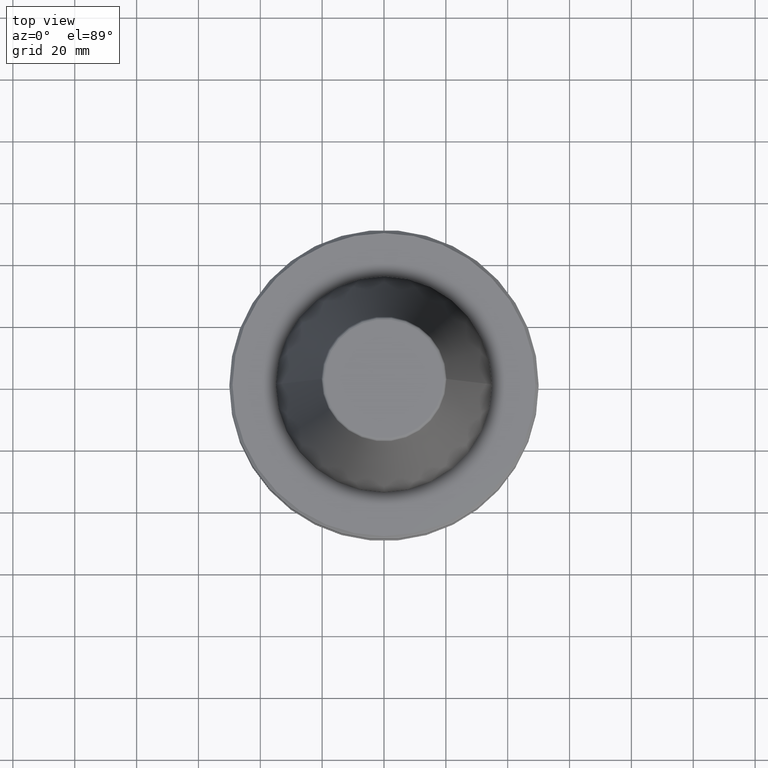
[diagram: clean part render]
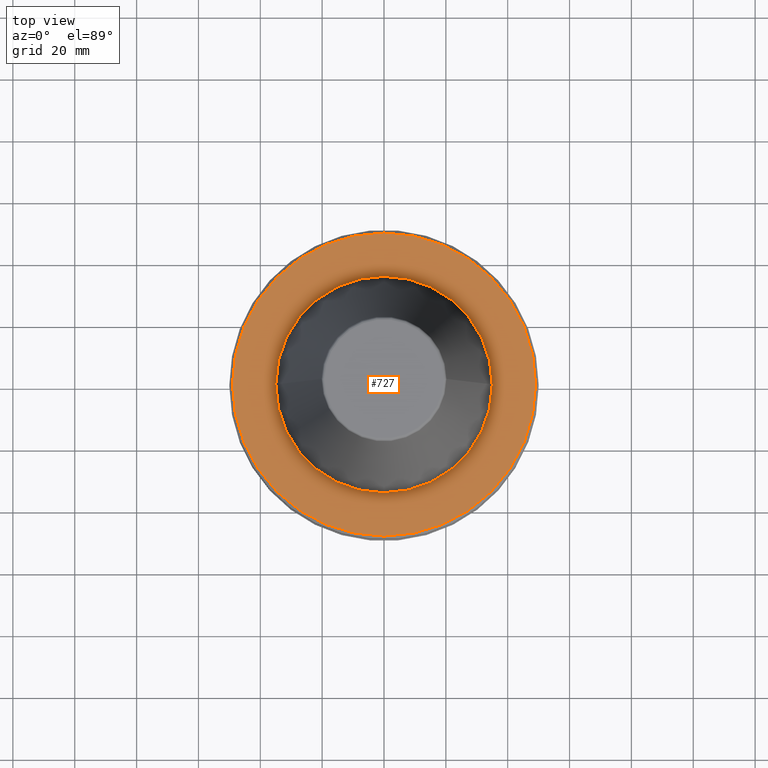
[diagram: same view with one face highlighted and labeled with its STEP entity id]
A machine part, top view. The second image highlights one B-rep face of the part: STEP entity #727.
In plain terms, the highlighted planar face has unit normal (0, 0, -1).
Its self-contained STEP definition (entity closure, byte-faithful):
#10 = VERTEX_POINT ( 'NONE', #314 ) ;
#24 = FACE_OUTER_BOUND ( 'NONE', #279, .T. ) ;
#58 = EDGE_CURVE ( 'NONE', #10, #773, #427, .T. ) ;
#59 = DIRECTION ( 'NONE',  ( -1.000000000000000000, 0.0000000000000000000, -0.0000000000000000000 ) ) ;
#69 = AXIS2_PLACEMENT_3D ( 'NONE', #600, #762, #121 ) ;
#91 = EDGE_CURVE ( 'NONE', #773, #10, #985, .T. ) ;
#99 = AXIS2_PLACEMENT_3D ( 'NONE', #861, #777, #162 ) ;
#103 = CARTESIAN_POINT ( 'NONE',  ( -35.00000000000000000, 4.286263797015737300E-015, -2.999999999999995600 ) ) ;
#121 = DIRECTION ( 'NONE',  ( 1.000000000000000000, 0.0000000000000000000, 0.0000000000000000000 ) ) ;
#135 = VERTEX_POINT ( 'NONE', #579 ) ;
#148 = CARTESIAN_POINT ( 'NONE',  ( -49.00000000000000000, 0.0000000000000000000, -2.999999999999988900 ) ) ;
#162 = DIRECTION ( 'NONE',  ( 1.000000000000000000, 0.0000000000000000000, 0.0000000000000000000 ) ) ;
#222 = AXIS2_PLACEMENT_3D ( 'NONE', #362, #358, #373 ) ;
#227 = DIRECTION ( 'NONE',  ( 1.000000000000000000, 0.0000000000000000000, 0.0000000000000000000 ) ) ;
#270 = EDGE_CURVE ( 'NONE', #135, #867, #308, .T. ) ;
#279 = EDGE_LOOP ( 'NONE', ( #564, #635 ) ) ;
#308 = CIRCLE ( 'NONE', #99, 35.00000000000000000 ) ;
#314 = CARTESIAN_POINT ( 'NONE',  ( 49.00000000000000000, 6.062001655779398500E-015, -2.999999999999988900 ) ) ;
#333 = AXIS2_PLACEMENT_3D ( 'NONE', #900, #667, #227 ) ;
#358 = DIRECTION ( 'NONE',  ( -0.0000000000000000000, -0.0000000000000000000, 1.000000000000000000 ) ) ;
#362 = CARTESIAN_POINT ( 'NONE',  ( 0.0000000000000000000, 0.0000000000000000000, -2.999999999999988900 ) ) ;
#373 = DIRECTION ( 'NONE',  ( 1.000000000000000000, 0.0000000000000000000, 0.0000000000000000000 ) ) ;
#380 = FACE_BOUND ( 'NONE', #798, .T. ) ;
#427 = CIRCLE ( 'NONE', #69, 49.00000000000000000 ) ;
#484 = CIRCLE ( 'NONE', #333, 35.00000000000000000 ) ;
#522 = EDGE_CURVE ( 'NONE', #867, #135, #484, .T. ) ;
#564 = ORIENTED_EDGE ( 'NONE', *, *, #91, .T. ) ;
#579 = CARTESIAN_POINT ( 'NONE',  ( 35.00000000000000000, 0.0000000000000000000, -2.999999999999995600 ) ) ;
#600 = CARTESIAN_POINT ( 'NONE',  ( 0.0000000000000000000, 0.0000000000000000000, -2.999999999999988900 ) ) ;
#613 = DIRECTION ( 'NONE',  ( 0.0000000000000000000, 0.0000000000000000000, -1.000000000000000000 ) ) ;
#635 = ORIENTED_EDGE ( 'NONE', *, *, #58, .T. ) ;
#644 = AXIS2_PLACEMENT_3D ( 'NONE', #690, #613, #59 ) ;
#667 = DIRECTION ( 'NONE',  ( -0.0000000000000000000, -0.0000000000000000000, 1.000000000000000000 ) ) ;
#690 = CARTESIAN_POINT ( 'NONE',  ( 0.0000000000000000000, 35.00000000000000000, -3.000000000000002700 ) ) ;
#727 = ADVANCED_FACE ( 'NONE', ( #380, #24 ), #839, .F. ) ;
#762 = DIRECTION ( 'NONE',  ( -0.0000000000000000000, -0.0000000000000000000, 1.000000000000000000 ) ) ;
#764 = ORIENTED_EDGE ( 'NONE', *, *, #270, .F. ) ;
#773 = VERTEX_POINT ( 'NONE', #148 ) ;
#777 = DIRECTION ( 'NONE',  ( -0.0000000000000000000, -0.0000000000000000000, 1.000000000000000000 ) ) ;
#798 = EDGE_LOOP ( 'NONE', ( #764, #901 ) ) ;
#839 = PLANE ( 'NONE',  #644 ) ;
#861 = CARTESIAN_POINT ( 'NONE',  ( 0.0000000000000000000, 0.0000000000000000000, -2.999999999999988900 ) ) ;
#867 = VERTEX_POINT ( 'NONE', #103 ) ;
#900 = CARTESIAN_POINT ( 'NONE',  ( 0.0000000000000000000, 0.0000000000000000000, -2.999999999999988900 ) ) ;
#901 = ORIENTED_EDGE ( 'NONE', *, *, #522, .F. ) ;
#985 = CIRCLE ( 'NONE', #222, 49.00000000000000000 ) ;